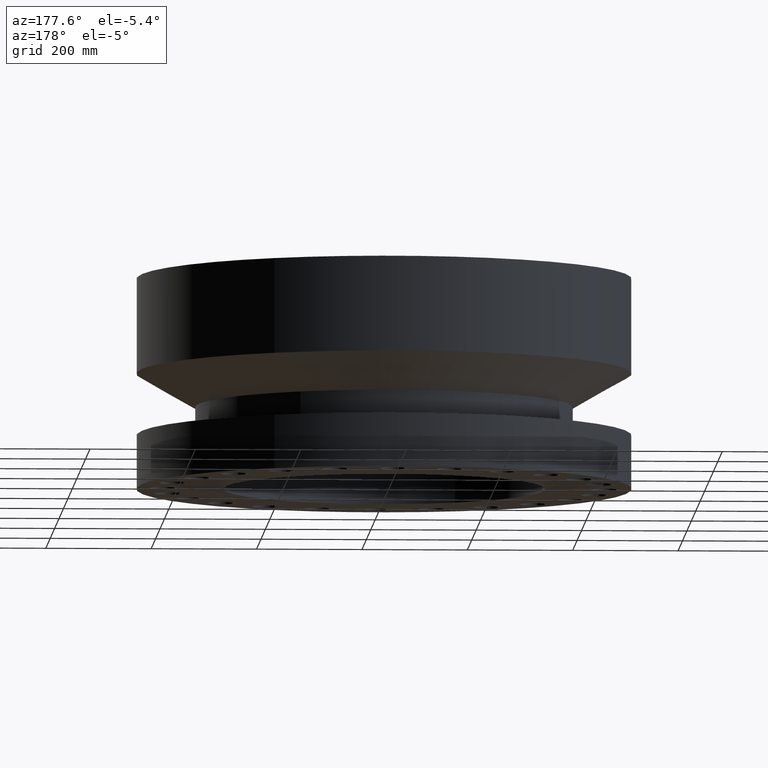
[diagram: clean part render]
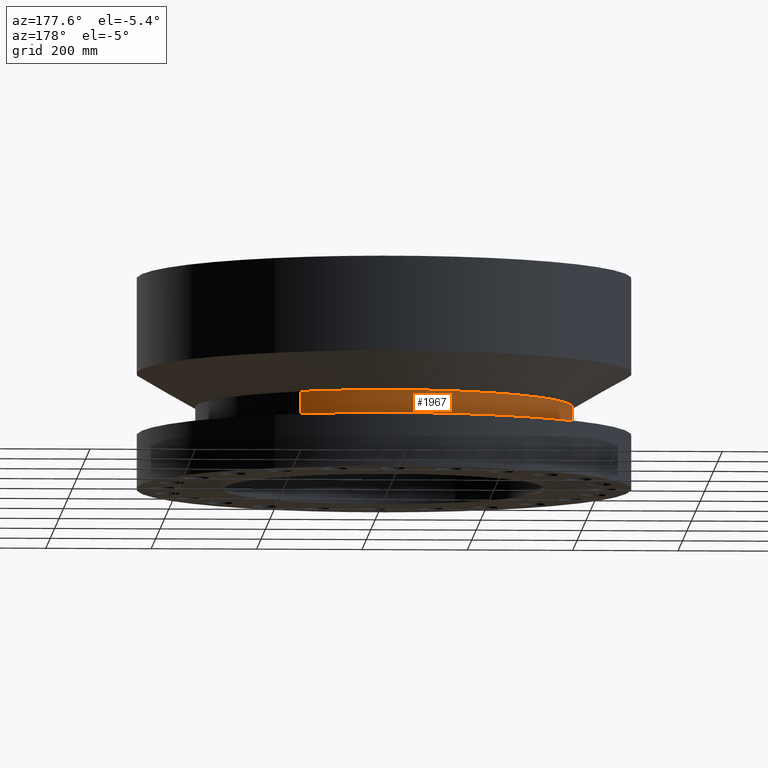
[diagram: same view with one face highlighted and labeled with its STEP entity id]
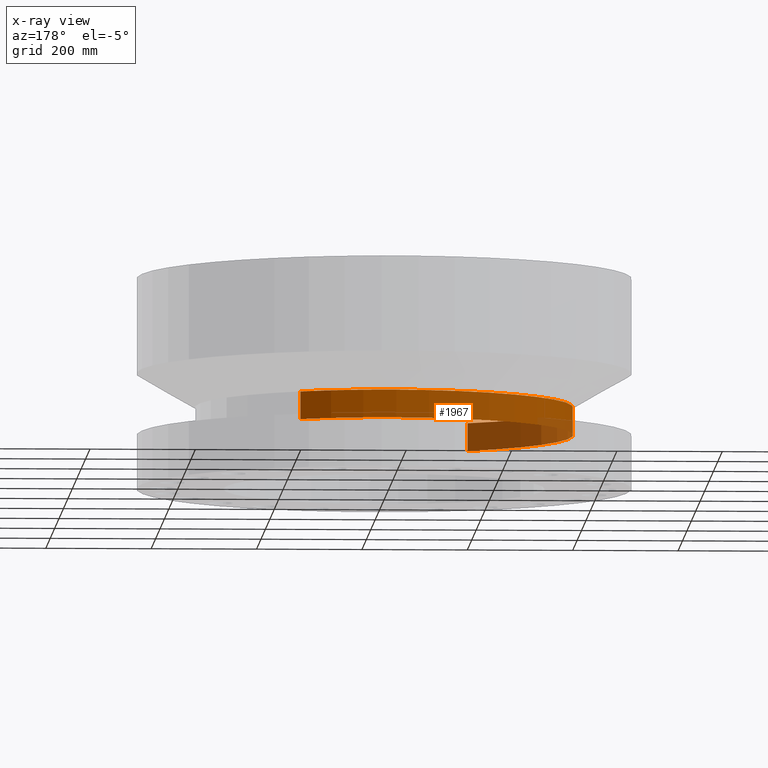
[diagram: x-ray of the same camera — body ghosted, the highlighted face saturated]
A machine part, auxiliary view. The second image highlights one B-rep face of the part: STEP entity #1967.
The next image is the same camera in x-ray: the body ghosted, the highlighted face saturated — about 27% of this face is hidden behind the body in this view.
In plain terms, the highlighted cylindrical surface (partial cylindrical patch) has radius 358.775 mm, axis along (0, 0, -1).
Its self-contained STEP definition (entity closure, byte-faithful):
#1736=AXIS2_PLACEMENT_3D('Circle Axis2P3D',#1734,#1735,$) ;
#1928=AXIS2_PLACEMENT_3D('Cylinder Axis2P3D',#1925,#1926,#1927) ;
#1958=AXIS2_PLACEMENT_3D('Circle Axis2P3D',#1956,#1957,$) ;
#1712=CARTESIAN_POINT('Vertex',(6.77188573281,12.3958536868,4.04098076213)) ;
#1719=CARTESIAN_POINT('Vertex',(-6.77188573281,-12.3958536868,4.04098076213)) ;
#1734=CARTESIAN_POINT('Axis2P3D Location',(0.,0.,4.04098076213)) ;
#1925=CARTESIAN_POINT('Axis2P3D Location',(0.,0.,7.75000000003)) ;
#1930=CARTESIAN_POINT('Line Origine',(6.77188573281,12.3958536868,5.08049038108)) ;
#1934=CARTESIAN_POINT('Vertex',(6.77188573281,12.3958536868,6.12000000002)) ;
#1941=CARTESIAN_POINT('Vertex',(-6.77188573281,-12.3958536868,6.12000000002)) ;
#1944=CARTESIAN_POINT('Line Origine',(-6.77188573281,-12.3958536868,5.08049038108)) ;
#1956=CARTESIAN_POINT('Axis2P3D Location',(0.,0.,6.12000000002)) ;
#1735=DIRECTION('Axis2P3D Direction',(-0.,0.,0.0393700787402)) ;
#1926=DIRECTION('Axis2P3D Direction',(0.,0.,-0.0393700787402)) ;
#1927=DIRECTION('Axis2P3D XDirection',(-0.0188750212049,-0.0345504945626,0.)) ;
#1931=DIRECTION('Vector Direction',(0.,0.,-0.0393700787402)) ;
#1945=DIRECTION('Vector Direction',(0.,0.,-0.0393700787402)) ;
#1957=DIRECTION('Axis2P3D Direction',(0.,0.,-0.0393700787402)) ;
#1932=VECTOR('Line Direction',#1931,0.0393700787402) ;
#1946=VECTOR('Line Direction',#1945,0.0393700787402) ;
#1962=ORIENTED_EDGE('',*,*,#1738,.F.) ;
#1963=ORIENTED_EDGE('',*,*,#1948,.T.) ;
#1964=ORIENTED_EDGE('',*,*,#1960,.T.) ;
#1965=ORIENTED_EDGE('',*,*,#1936,.F.) ;
#1967=ADVANCED_FACE('PartBody',(#1966),#1929,.T.) ;
#1737=CIRCLE('generated circle',#1736,14.1250000001) ;
#1959=CIRCLE('generated circle',#1958,14.1250000001) ;
#1929=CYLINDRICAL_SURFACE('generated cylinder',#1928,14.1250000001) ;
#1738=EDGE_CURVE('',#1720,#1713,#1737,.F.) ;
#1936=EDGE_CURVE('',#1713,#1935,#1933,.F.) ;
#1948=EDGE_CURVE('',#1720,#1942,#1947,.F.) ;
#1960=EDGE_CURVE('',#1942,#1935,#1959,.T.) ;
#1961=EDGE_LOOP('',(#1962,#1963,#1964,#1965)) ;
#1966=FACE_OUTER_BOUND('',#1961,.T.) ;
#1933=LINE('Line',#1930,#1932) ;
#1947=LINE('Line',#1944,#1946) ;
#1713=VERTEX_POINT('',#1712) ;
#1720=VERTEX_POINT('',#1719) ;
#1935=VERTEX_POINT('',#1934) ;
#1942=VERTEX_POINT('',#1941) ;